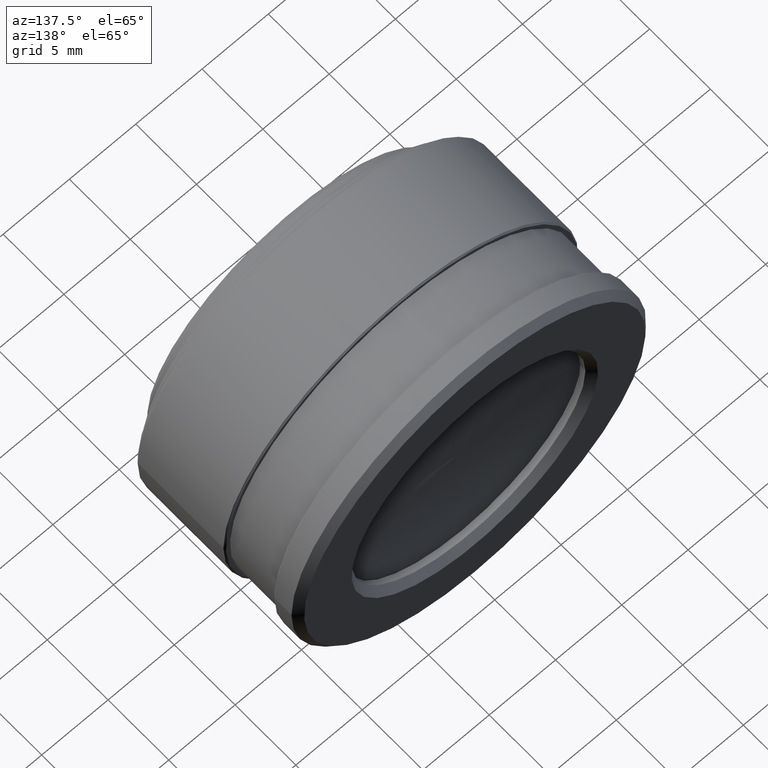
[diagram: clean part render]
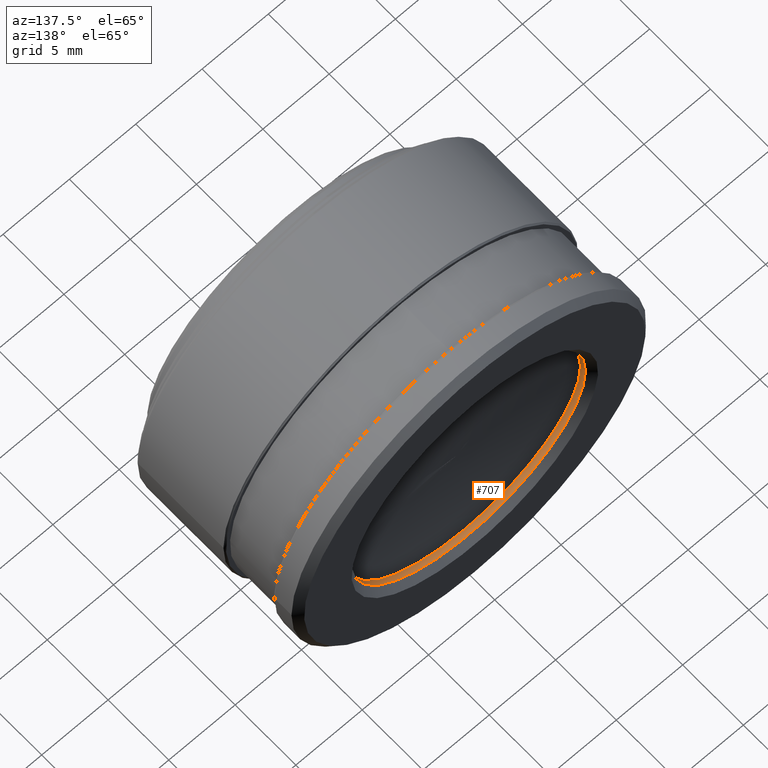
[diagram: same view with one face highlighted and labeled with its STEP entity id]
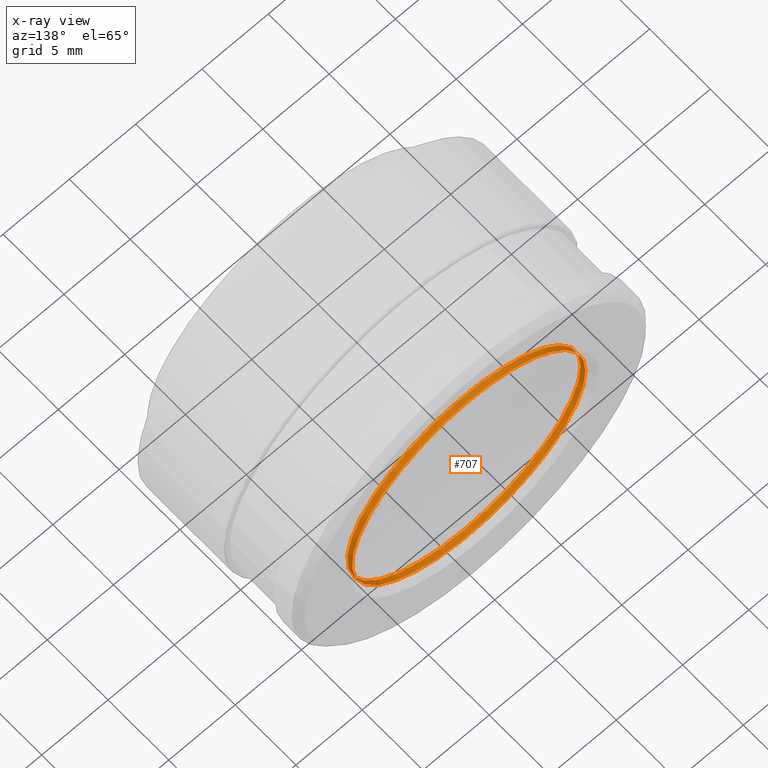
[diagram: x-ray of the same camera — body ghosted, the highlighted face saturated]
A machine part, auxiliary view. The second image highlights one B-rep face of the part: STEP entity #707.
The next image is the same camera in x-ray: the body ghosted, the highlighted face saturated — about 0% of this face is hidden behind the body in this view.
In plain terms, the highlighted cylindrical surface (bore or boss wall) has radius 8.8 mm, axis along (-0, 1, 0).
Its self-contained STEP definition (entity closure, byte-faithful):
#20 = CARTESIAN_POINT ( 'NONE',  ( -8.800000001000000793, 12.46129742399999962, 0.000000000000000000 ) ) ;
#40 = ORIENTED_EDGE ( 'NONE', *, *, #1567, .F. ) ;
#145 = VERTEX_POINT ( 'NONE', #804 ) ;
#231 = DIRECTION ( 'NONE',  ( -1.000000000000000000, 0.000000000000000000, 0.000000000000000000 ) ) ;
#274 = CARTESIAN_POINT ( 'NONE',  ( 0.000000000000000000, 12.46129742399999962, 0.000000000000000000 ) ) ;
#291 = FACE_OUTER_BOUND ( 'NONE', #908, .T. ) ;
#306 = CYLINDRICAL_SURFACE ( 'NONE', #1166, 8.800000001000000793 ) ;
#412 = FACE_OUTER_BOUND ( 'NONE', #1648, .T. ) ;
#501 = EDGE_CURVE ( 'NONE', #697, #697, #1419, .T. ) ;
#697 = VERTEX_POINT ( 'NONE', #20 ) ;
#701 = DIRECTION ( 'NONE',  ( -0.000000000000000000, 1.000000000000000000, 9.856383385111813160E-17 ) ) ;
#707 = ADVANCED_FACE ( 'NONE', ( #412, #291 ), #306, .F. ) ;
#804 = CARTESIAN_POINT ( 'NONE',  ( -8.800000001000000793, 12.86128601500000279, 0.000000000000000000 ) ) ;
#908 = EDGE_LOOP ( 'NONE', ( #40 ) ) ;
#928 = DIRECTION ( 'NONE',  ( -0.000000000000000000, -1.000000000000000000, -0.000000000000000000 ) ) ;
#1033 = DIRECTION ( 'NONE',  ( -1.000000000000000000, -2.956915015533544145E-15, 0.000000000000000000 ) ) ;
#1060 = CIRCLE ( 'NONE', #1286, 8.800000001000000793 ) ;
#1166 = AXIS2_PLACEMENT_3D ( 'NONE', #274, #701, #1247 ) ;
#1169 = DIRECTION ( 'NONE',  ( -0.000000000000000000, -1.000000000000000000, -0.000000000000000000 ) ) ;
#1247 = DIRECTION ( 'NONE',  ( 0.000000000000000000, 0.000000000000000000, 1.000000000000000000 ) ) ;
#1286 = AXIS2_PLACEMENT_3D ( 'NONE', #1301, #1169, #1033 ) ;
#1301 = CARTESIAN_POINT ( 'NONE',  ( 0.000000000000000000, 12.86128601500002944, 0.000000000000000000 ) ) ;
#1419 = CIRCLE ( 'NONE', #1694, 8.800000001000000793 ) ;
#1567 = EDGE_CURVE ( 'NONE', #145, #145, #1060, .T. ) ;
#1584 = CARTESIAN_POINT ( 'NONE',  ( 0.000000000000000000, 12.46129742399999962, 0.000000000000000000 ) ) ;
#1585 = ORIENTED_EDGE ( 'NONE', *, *, #501, .T. ) ;
#1648 = EDGE_LOOP ( 'NONE', ( #1585 ) ) ;
#1694 = AXIS2_PLACEMENT_3D ( 'NONE', #1584, #928, #231 ) ;